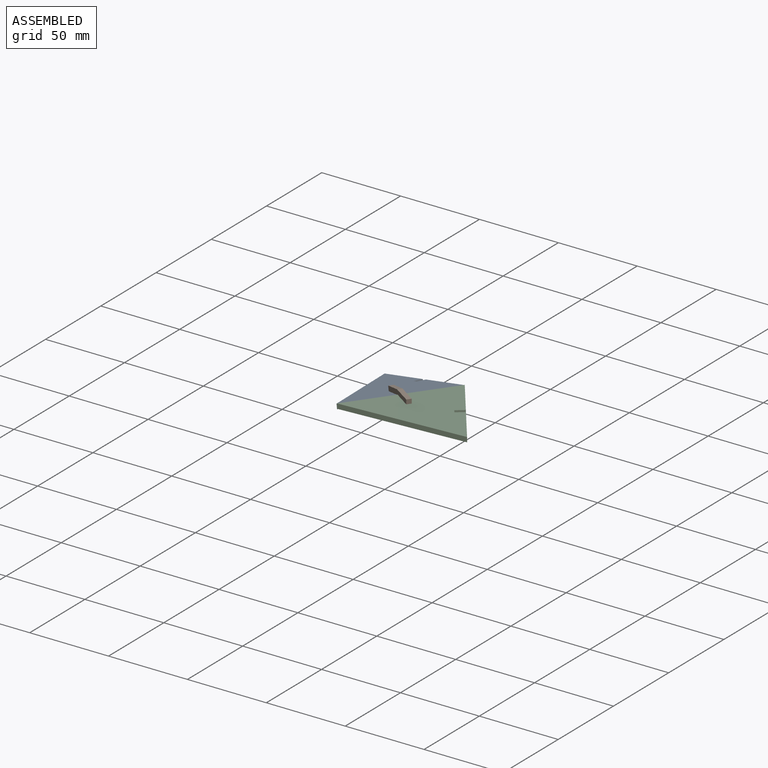
[diagram: assembled view]
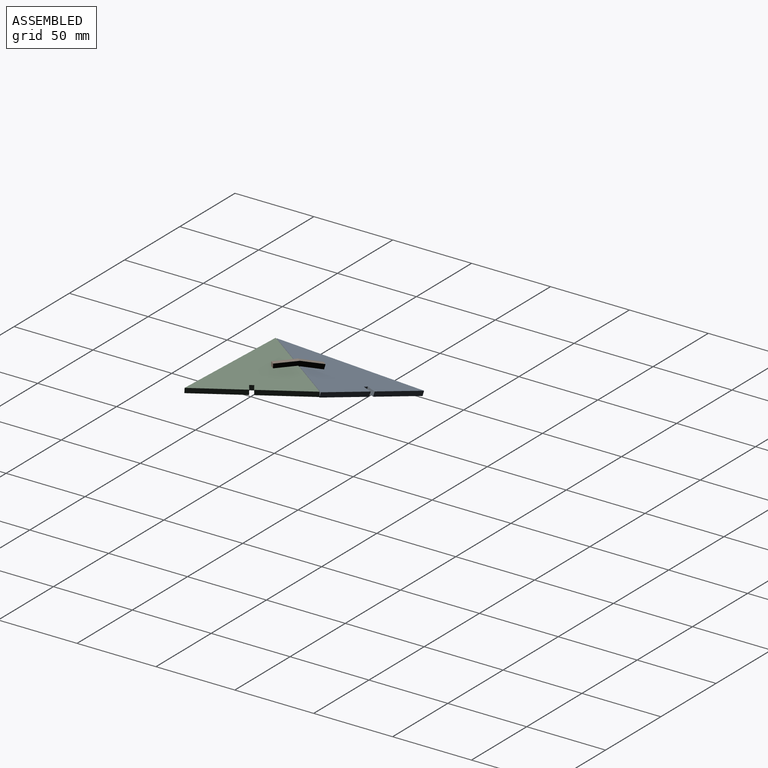
[diagram: assembled view, second angle]
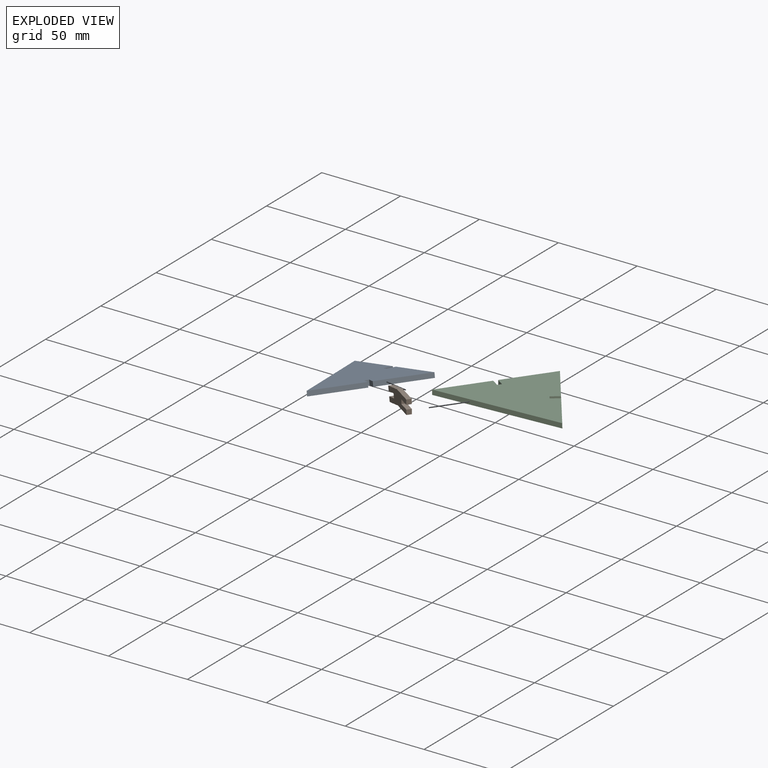
[diagram: exploded view]
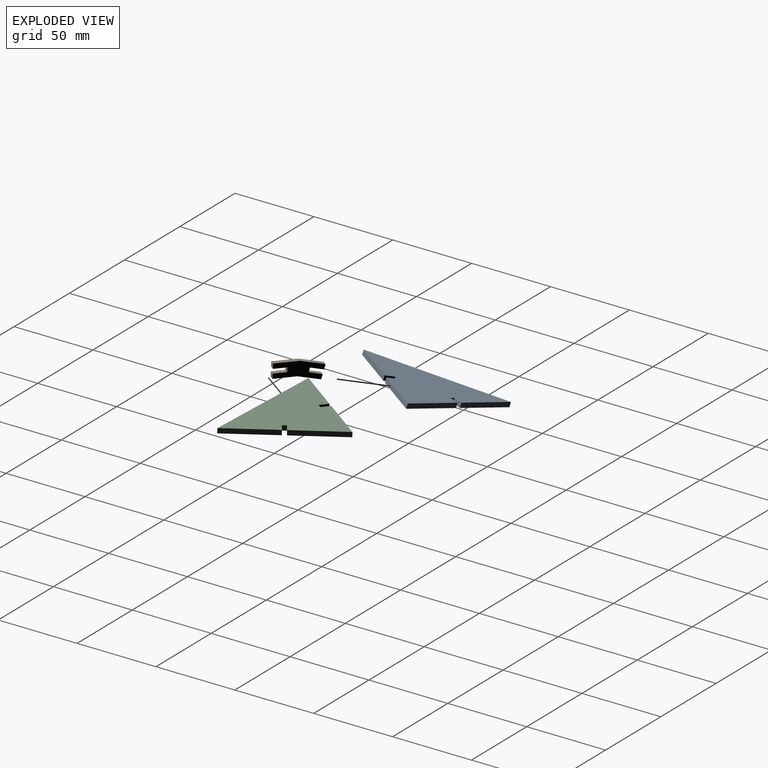
[diagram: exploded view, second angle]
ASSEMBLY  parts=3 mates=6
PART A: 13 faces, bbox 82.5x56.8x3 mm
  f0: plane 4.85x3.53mm, normal (-0.59,-0.81,0), area 18mm2, adj f1,f10,f11,f12
  f1: plane 3x2.18mm, normal (-0.81,0.59,0), area 8.1mm2, adj f0,f2,f11,f12
  f2: plane 4.85x3.53mm, normal (0.59,0.81,0), area 18mm2, adj f1,f3,f11,f12
  f3: plane 27.19x19.75mm, normal (-0.81,0.59,0), area 100.8mm2, adj f2,f4,f11,f12
  f4: plane 82.54x3mm, normal (0,-1,0), area 247.6mm2, adj f3,f5,f11,f12
  f5: plane 27.19x19.75mm, normal (0.81,0.59,0), area 100.8mm2, adj f4,f6,f11,f12
  f6: plane 4.85x3.53mm, normal (-0.59,0.81,0), area 18mm2, adj f5,f7,f11,f12
  f7: plane 3x2.18mm, normal (0.81,0.59,0), area 8.1mm2, adj f6,f8,f11,f12
  f8: plane 4.85x3.53mm, normal (0.59,-0.81,0), area 18mm2, adj f7,f9,f11,f12
  f9: plane 27.43x19.93mm, normal (0.81,0.59,0), area 101.7mm2, adj f8,f10,f11,f12
  f10: plane 27.43x19.93mm, normal (-0.81,0.59,0), area 101.7mm2, adj f0,f9,f11,f12
  f11: plane 82.54x56.8mm, normal (0,0,1), area 2311.6mm2, adj f0,f1,f2,f3,f4,f5,f6,f7
  f12: plane 82.54x56.8mm, normal (0,0,-1), area 2311.6mm2, adj f0,f1,f2,f3,f4,f5,f6,f7
PART B: 16 faces, bbox 11.9x28.9x3 mm
  f0: plane 13.26x3.21mm, normal (0.97,-0.24,0), area 40.9mm2, adj f1,f13,f14,f15
  f1: plane 3x2.92mm, normal (0.24,0.97,0), area 9mm2, adj f0,f2,f14,f15
  f2: plane 7.78x3mm, normal (-0.97,0.24,0), area 24mm2, adj f1,f3,f14,f15
  f3: plane 3x2.62mm, normal (0.24,0.97,0), area 8.1mm2, adj f2,f4,f14,f15
  f4: plane 7.78x3mm, normal (0.97,-0.24,0), area 24mm2, adj f3,f5,f14,f15
  f5: plane 3x2.92mm, normal (0.24,0.97,0), area 9mm2, adj f4,f6,f14,f15
  f6: plane 14.27x3.45mm, normal (-0.97,0.24,0), area 44mm2, adj f5,f7,f14,f15
  f7: plane 14.68x3mm, normal (-1,0,0), area 44mm2, adj f6,f8,f14,f15
  f8: plane 3x3mm, normal (0,-1,0), area 9mm2, adj f7,f9,f14,f15
  f9: plane 8x3mm, normal (1,0,0), area 24mm2, adj f8,f10,f14,f15
  f10: plane 3x2.7mm, normal (0,-1,0), area 8.1mm2, adj f9,f11,f14,f15
  f11: plane 8x3mm, normal (-1,0,0), area 24mm2, adj f10,f12,f14,f15
  f12: plane 3x3mm, normal (0,-1,0), area 9mm2, adj f11,f13,f14,f15
  f13: plane 13.64x3mm, normal (1,0,0), area 40.9mm2, adj f0,f12,f14,f15
  f14: plane 28.95x11.91mm, normal (0,0,1), area 203.2mm2, adj f0,f1,f2,f3,f4,f5,f6,f7
  f15: plane 28.95x11.91mm, normal (0,0,-1), area 203.2mm2, adj f0,f1,f2,f3,f4,f5,f6,f7
PART C: same geometry as A
PLACE A rot(axis=(0,-0.23,-0.97),73.5deg) t=(322.77,-88.11,-850.5)mm
PLACE B rot(axis=(0.73,0.25,-0.63),132.1deg) t=(286.28,-176.68,-950.87)mm
PLACE C rot(axis=(-0.59,-0.81,0),2.4deg) t=(252.9,-97.31,-850.47)mm
MATE planar C.f0 <-> B.f15  axis (-0.59,-0.81,0) through (276.57,-169.63,-846.38)mm
MATE planar B.f10 <-> A.f7  axis (-0.78,0.57,-0.28) through (268.65,-165.73,-849.66)mm
MATE planar B.f2 <-> C.f12  axis (-0.03,0.02,1) through (281.4,-174.99,-847.59)mm
MATE planar B.f3 <-> C.f1  axis (0.81,-0.59,0.04) through (278.12,-172.61,-846.41)mm
MATE planar A.f8 <-> B.f15  axis (-0.59,-0.81,0) through (271.59,-166.02,-847.68)mm
MATE planar B.f9 <-> A.f11  axis (0.22,-0.16,-0.96) through (264.93,-163.03,-848.17)mm
